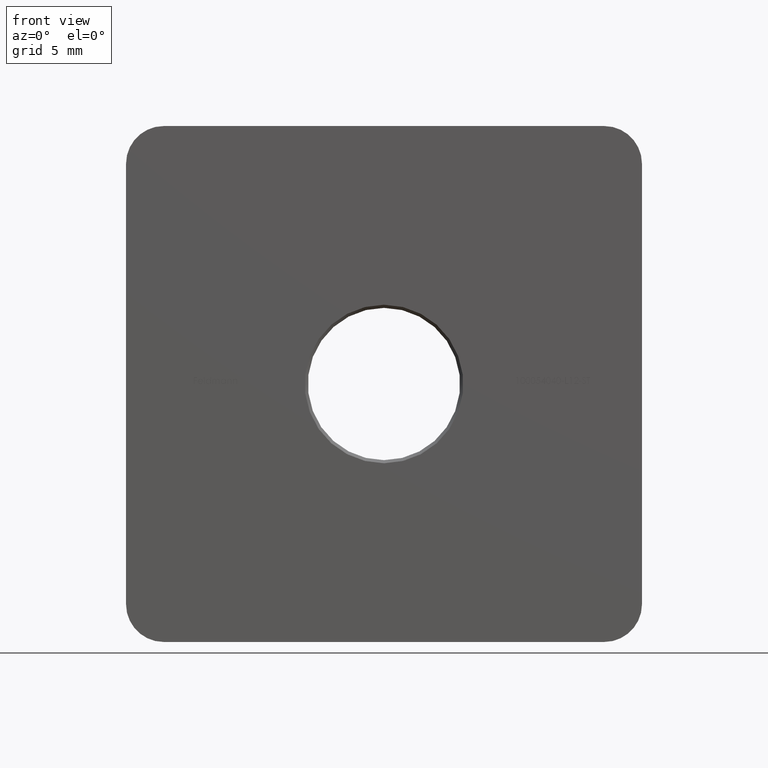
[diagram: clean part render]
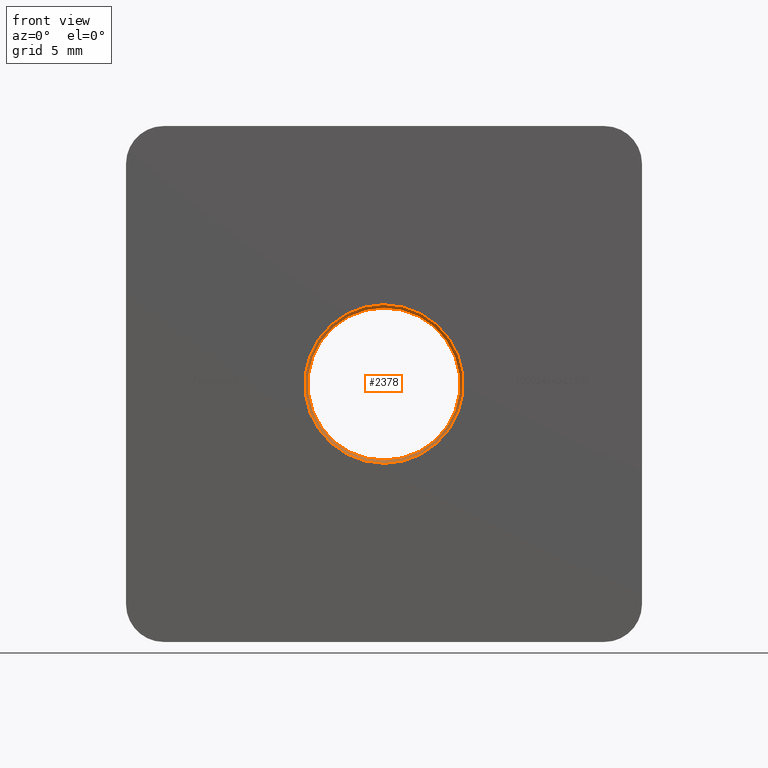
[diagram: same view with one face highlighted and labeled with its STEP entity id]
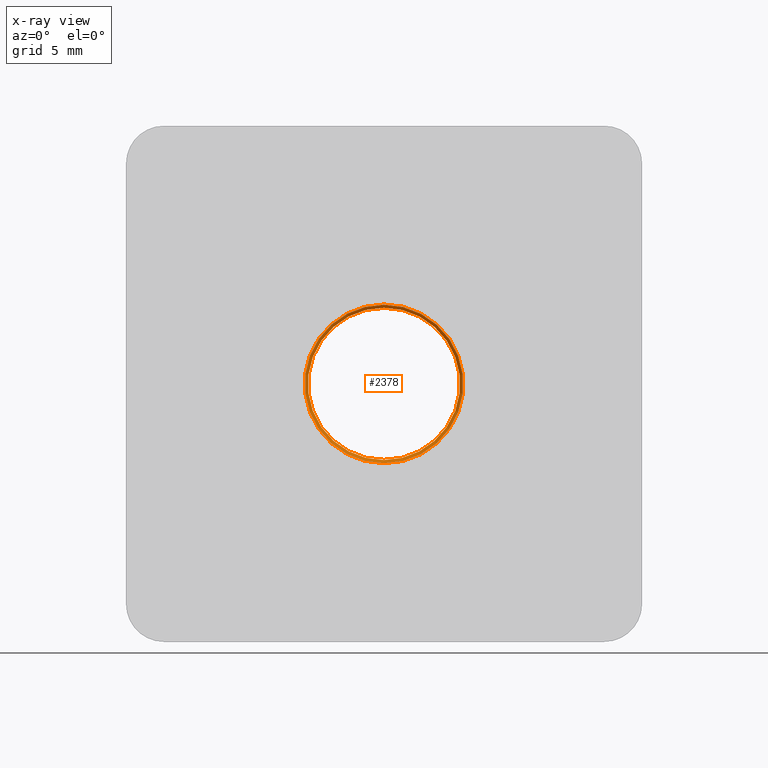
[diagram: x-ray of the same camera — body ghosted, the highlighted face saturated]
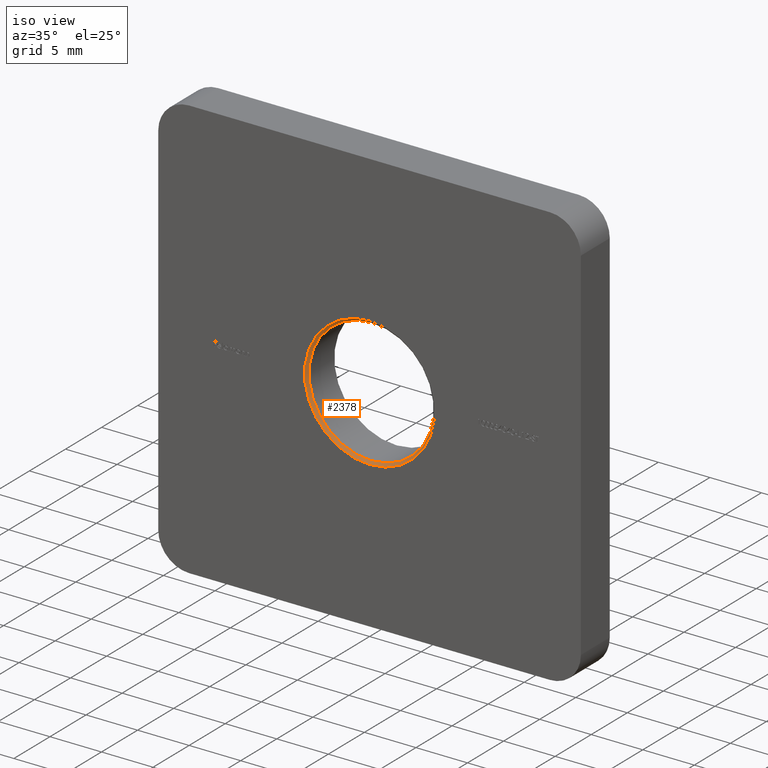
[diagram: same view with one face highlighted and labeled with its STEP entity id]
A machine part, front view. The second image highlights one B-rep face of the part: STEP entity #2378.
The next image is the same camera in x-ray: the body ghosted, the highlighted face saturated — about 0% of this face is hidden behind the body in this view.
A second angle (iso view) of the same face is appended — the face is thin or edge-on in the first view.
In plain terms, the highlighted conical surface has half-angle 45 deg.
Its self-contained STEP definition (entity closure, byte-faithful):
#523 = AXIS2_PLACEMENT_3D ( 'NONE', #16274, #16325, #3538 ) ;
#828 = CIRCLE ( 'NONE', #523, 6.049999999999999822 ) ;
#1233 = FACE_BOUND ( 'NONE', #4830, .T. ) ;
#1601 = DIRECTION ( 'NONE',  ( -0.000000000000000000, -1.000000000000000000, -0.000000000000000000 ) ) ;
#2378 = ADVANCED_FACE ( 'NONE', ( #1233, #5035 ), #13547, .F. ) ;
#2758 = EDGE_CURVE ( 'NONE', #14968, #14968, #828, .T. ) ;
#3485 = CARTESIAN_POINT ( 'NONE',  ( 0.000000000000000000, 0.000000000000000000, 0.000000000000000000 ) ) ;
#3538 = DIRECTION ( 'NONE',  ( 0.000000000000000000, 0.000000000000000000, 1.000000000000000000 ) ) ;
#4083 = ORIENTED_EDGE ( 'NONE', *, *, #2758, .F. ) ;
#4288 = EDGE_CURVE ( 'NONE', #12572, #12572, #15110, .T. ) ;
#4830 = EDGE_LOOP ( 'NONE', ( #4083 ) ) ;
#5035 = FACE_OUTER_BOUND ( 'NONE', #12034, .T. ) ;
#5679 = CARTESIAN_POINT ( 'NONE',  ( 0.000000000000000000, 0.2499999999999932832, 6.049999999999999822 ) ) ;
#5898 = DIRECTION ( 'NONE',  ( 0.000000000000000000, 0.000000000000000000, 1.000000000000000000 ) ) ;
#6895 = DIRECTION ( 'NONE',  ( 0.000000000000000000, 0.000000000000000000, -1.000000000000000000 ) ) ;
#7945 = CARTESIAN_POINT ( 'NONE',  ( 0.000000000000000000, 0.000000000000000000, 0.000000000000000000 ) ) ;
#8879 = ORIENTED_EDGE ( 'NONE', *, *, #4288, .F. ) ;
#9585 = AXIS2_PLACEMENT_3D ( 'NONE', #3485, #13497, #5898 ) ;
#12034 = EDGE_LOOP ( 'NONE', ( #8879 ) ) ;
#12572 = VERTEX_POINT ( 'NONE', #14675 ) ;
#13497 = DIRECTION ( 'NONE',  ( 0.000000000000000000, 1.000000000000000000, 0.000000000000000000 ) ) ;
#13547 = CONICAL_SURFACE ( 'NONE', #14787, 6.299999999999992717, 0.7853981633974482790 ) ;
#14675 = CARTESIAN_POINT ( 'NONE',  ( 0.000000000000000000, 0.000000000000000000, 6.299999999999992717 ) ) ;
#14787 = AXIS2_PLACEMENT_3D ( 'NONE', #7945, #1601, #6895 ) ;
#14968 = VERTEX_POINT ( 'NONE', #5679 ) ;
#15110 = CIRCLE ( 'NONE', #9585, 6.299999999999992717 ) ;
#16274 = CARTESIAN_POINT ( 'NONE',  ( 0.000000000000000000, 0.2499999999999932832, 0.000000000000000000 ) ) ;
#16325 = DIRECTION ( 'NONE',  ( -0.000000000000000000, -1.000000000000000000, -0.000000000000000000 ) ) ;